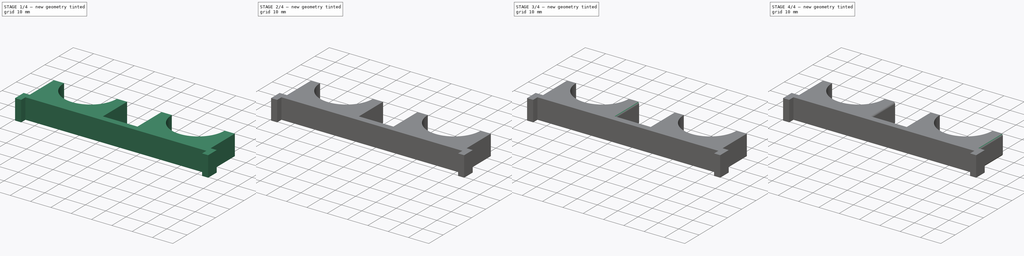
[diagram: build sequence overview — one tinted view per stage of 4, left to right]
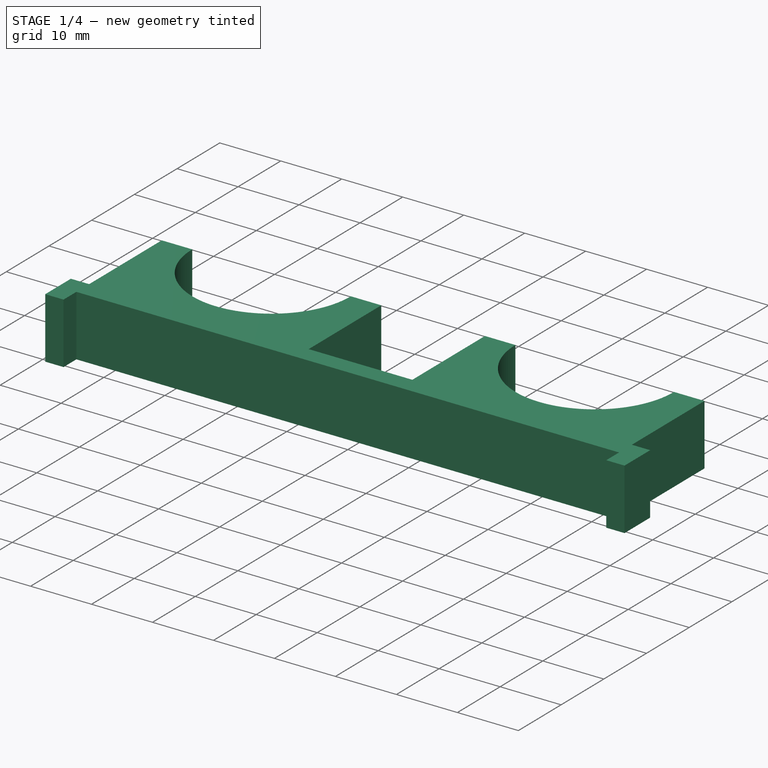
[diagram: stage 1 of 4 — iso view after this stage's code; geometry added in this stage tinted green]
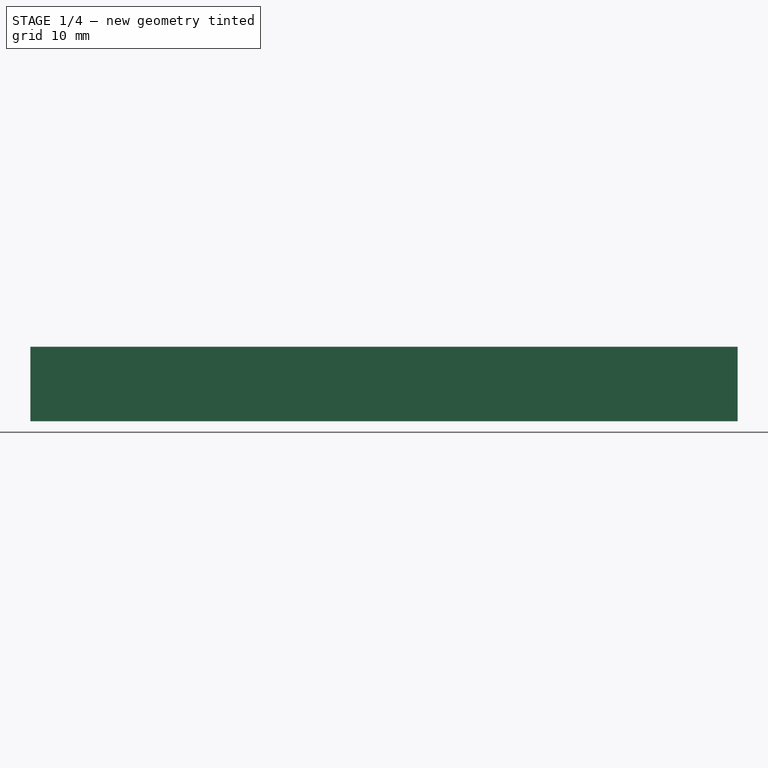
[diagram: stage 1 of 4 — front view after this stage's code; geometry added in this stage tinted green]
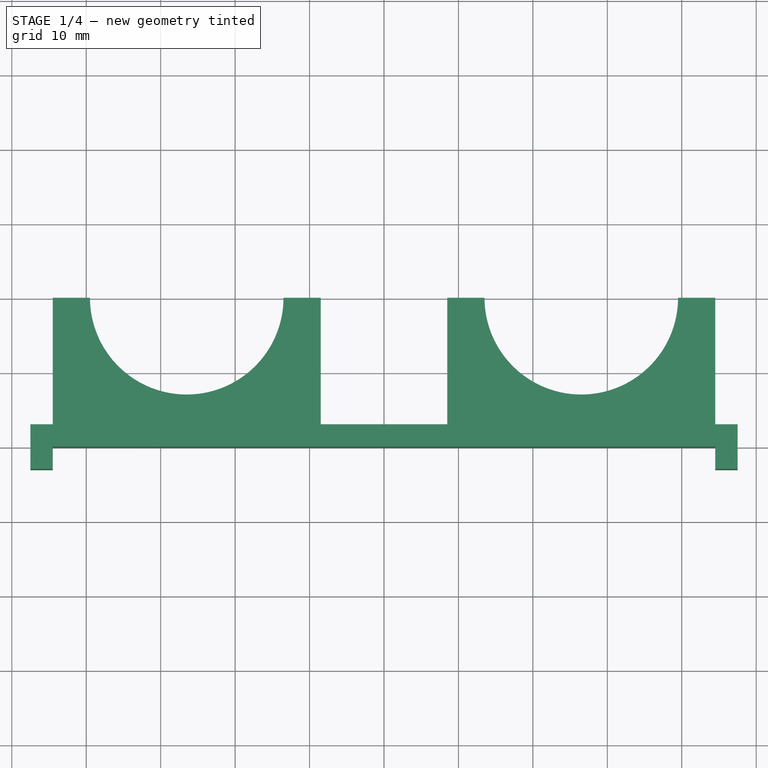
[diagram: stage 1 of 4 — top view after this stage's code; geometry added in this stage tinted green]
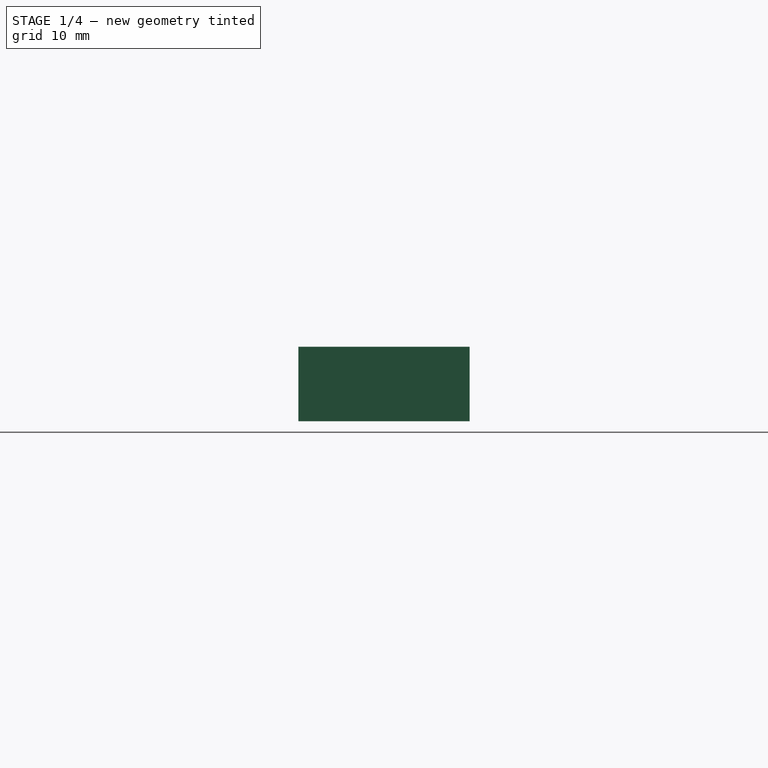
[diagram: stage 1 of 4 — right view after this stage's code; geometry added in this stage tinted green]
FCSTD DOCUMENT  (FreeCAD 0.19R22960 (Git))
Label: pump_plate
License: All rights reserved
LicenseURL: http://en.wikipedia.org/wiki/All_rights_reserved
objects: PartDesign::Fillet×8, PartDesign::CoordinateSystem×5, App::Link×4, App::DocumentObjectGroup×2, Sketcher::SketchObject×2, App::FeaturePython×1, PartDesign::Pad×1, PartDesign::Pocket×1, PartDesign::Body×1, App::Part×1
note: 28 computed .brp shape members not serialized (recipe doc carries the construction recipe); baked Part::Feature solids carry a one-line shape summary decoded from their .brp
EXTERNAL_REF file=12V_Pump.FCStd obj=LCS_Origin
EXTERNAL_REF file=12V_Pump.FCStd obj=Model
EXTERNAL_REF file=pump_clamp.FCStd obj=MH
EXTERNAL_REF file=pump_clamp.FCStd obj=Model

FEATURE [App::DocumentObjectGroup] Parts
FEATURE [PartDesign::CoordinateSystem] LCS_Origin
  AttacherType = Attacher::AttachEngine3D
  MapMode = 2
  Support = -> [X_Axis]
FEATURE [App::DocumentObjectGroup] Constraints
FEATURE [App::FeaturePython] Variables  # WARN: FeaturePython — macro-defined, semantics opaque (R4)
FEATURE [App::Link] _2V_Pump
  AssemblyType = Asm4EE
  AttachedBy = #LCS_Origin
  AttachedTo = Parent Assembly#Pump1_Mount
  AttachmentOffset = pos=(0,0,0) rot=(1,0,0;3.14159rad)
  LinkPlacement = pos=(-26.5,20,0) rot=(0.707107,-0.707107,0;3.14159rad)
  LinkedObject = -> <external 12V_Pump.FCStd>#Model
  Placement = pos=(-26.5,20,0) rot=(0.707107,-0.707107,0;3.14159rad)
  expr: Placement = Pump1_Mount.Placement * AttachmentOffset * _2V_Pump#LCS_Origin.Placement ^ -1
FEATURE [App::Link] _2V_Pump001
  AssemblyType = Asm4EE
  AttachedBy = #LCS_Origin
  AttachedTo = Parent Assembly#Pump2_Mount
  AttachmentOffset = pos=(0,0,0) rot=(1,0,0;3.14159rad)
  LinkPlacement = pos=(26.5,20,0) rot=(0.707107,-0.707107,0;3.14159rad)
  LinkedObject = -> <external 12V_Pump.FCStd>#Model
  Placement = pos=(26.5,20,0) rot=(0.707107,-0.707107,0;3.14159rad)
  expr: Placement = Pump2_Mount.Placement * AttachmentOffset * _2V_Pump#LCS_Origin.Placement ^ -1
FEATURE [Sketcher::SketchObject] Sketch001
  MapMode = 5
  Support = -> [XY_Plane001]
  sketch-geometry (22):
    g0: LineSegment StartX=-8.5 StartY=3 StartZ=0 EndX=-8.5 EndY=20 EndZ=0
    g1: LineSegment StartX=-44.5 StartY=20 StartZ=0 EndX=-39.5 EndY=20 EndZ=0
    g2: LineSegment StartX=-8.5 StartY=20 StartZ=0 EndX=-13.5 EndY=20 EndZ=0
    g3: ArcOfCircle CenterX=-26.5 CenterY=20 CenterZ=0 NormalX=0 NormalY=0 NormalZ=1 AngleXU=0 Radius=13 StartAngle=3.14159 EndAngle=6.28319
    g4: LineSegment StartX=8.5 StartY=3 StartZ=0 EndX=8.5 EndY=20 EndZ=0
    g5: LineSegment StartX=8.5 StartY=20 StartZ=0 EndX=13.5 EndY=20 EndZ=0
    g6: LineSegment StartX=44.5 StartY=20 StartZ=0 EndX=39.5 EndY=20 EndZ=0
    g7: ArcOfCircle CenterX=26.5 CenterY=20 CenterZ=0 NormalX=0 NormalY=0 NormalZ=1 AngleXU=0 Radius=13 StartAngle=3.14159 EndAngle=6.28319
    g8: LineSegment StartX=-8.5 StartY=3 StartZ=0 EndX=8.5 EndY=3 EndZ=0
    g9: LineSegment StartX=-43.5 StartY=0 StartZ=0 EndX=43.5 EndY=0 EndZ=0
    g10: LineSegment StartX=-44.5 StartY=3 StartZ=0 EndX=-47.5 EndY=3 EndZ=0
    g11: LineSegment StartX=-47.5 StartY=3 StartZ=0 EndX=-47.5 EndY=-3 EndZ=0
    g12: LineSegment StartX=-47.5 StartY=-3 StartZ=0 EndX=-44.5 EndY=-3 EndZ=0
    g13: LineSegment StartX=-44.5 StartY=-3 StartZ=0 EndX=-44.5 EndY=0 EndZ=0
    g14: LineSegment StartX=-44.5 StartY=3 StartZ=0 EndX=-44.5 EndY=20 EndZ=0
    g15: LineSegment StartX=43.5 StartY=0 StartZ=0 EndX=44.5 EndY=0 EndZ=0
    g16: LineSegment StartX=44.5 StartY=0 StartZ=0 EndX=44.5 EndY=-3 EndZ=0
    g17: LineSegment StartX=44.5 StartY=-3 StartZ=0 EndX=47.5 EndY=-3 EndZ=0
    g18: LineSegment StartX=47.5 StartY=-3 StartZ=0 EndX=47.5 EndY=3 EndZ=0
    g19: LineSegment StartX=47.5 StartY=3 StartZ=0 EndX=44.5 EndY=3 EndZ=0
    g20: LineSegment StartX=44.5 StartY=3 StartZ=0 EndX=44.5 EndY=20 EndZ=0
    g21: LineSegment StartX=-44.5 StartY=0 StartZ=0 EndX=-43.5 EndY=0 EndZ=0
  constraints (68):
    c: Vertical(g0)
    c: DistanceX(g9,g0) = 35
    c: DistanceY(g9,g1) = 20
    c: Horizontal(g1)
    c: Coincident(g2,g0)
    c: Horizontal(g2)
    c: Equal(g2,g1)
    c: DistanceX(g2,g2) = 5
    c: Coincident(g3,g1)
    c: Coincident(g3,g2)
    c: Horizontal(g3,g1)
    c: Vertical(g4)
    c: DistanceX(g4,g9) = 35
    c: Coincident(g5,g4)
    c: Horizontal(g5)
    c: Horizontal(g6)
    c: Equal(g6,g5)
    c: Equal(g2,g6) = 5
    c: Coincident(g7,g5)
    c: Coincident(g7,g6)
    c: Horizontal(g7,g5)
    c: Coincident(g8,g0)
    c: Coincident(g8,g4)
    c: DistanceY(g-1,g4) = 3
    c: Horizontal(g2,g1)
    c: Horizontal(g9,g-1)
    c: Horizontal(g9,g9)
    c: Symmetric(g0,g4,g-2)
    c: Equal(g4,g0)
    c: DistanceX(g8,g8) = 17
    c: Horizontal(g10)
    c: Coincident(g11,g10)
    c: Vertical(g11)
    c: Coincident(g12,g11)
    c: Horizontal(g12)
    c: Coincident(g13,g12)
    c: PointOnObject(g13,g-1)
    c: Vertical(g13)
    c: Coincident(g14,g10)
    c: Coincident(g14,g1)
    c: Vertical(g14)
    c: Coincident(g15,g9)
    c: PointOnObject(g15,g-1)
    c: Coincident(g16,g15)
    c: Vertical(g16)
    c: Coincident(g17,g16)
    c: Horizontal(g17)
    c: Coincident(g18,g17)
    c: Vertical(g18)
    c: Coincident(g19,g18)
    c: Horizontal(g19)
    c: Coincident(g20,g19)
    c: Coincident(g20,g6)
    c: Vertical(g20)
    c: Equal(g12,g17)
    c: Equal(g11,g18)
    c: Coincident(g21,g13)
    c: Coincident(g21,g9)
    c: Equal(g21,g15)
    c: DistanceX(g21,g21) = 1
    c: DistanceX(g12,g12) = 3
    c: DistanceY(g11,g11) = 6
    c: Equal(g20,g14)
    c: Horizontal(g5,g6)
    c: DistanceY(g14,g14) = 17
    c: Equal(g1,g2)
    c: Diameter(g3) = 26
    c: Equal(g7,g3)
FEATURE [PartDesign::Pad] Pad
  Direction = (1,1,1)
  Length = 10
  Length2 = 100
  Profile = -> Sketch001
  Type = 0
FEATURE [PartDesign::CoordinateSystem] Pump1_Mount
  AttacherType = Attacher::AttachEngine3D
  MapMode = 11
  Placement = pos=(-26.5,20,0) rot=(0,0,-1;1.5708rad)
  Support = -> [Pad]
FEATURE [PartDesign::CoordinateSystem] Pump2_Mount
  AttacherType = Attacher::AttachEngine3D
  MapMode = 11
  Placement = pos=(26.5,20,0) rot=(0,0,-1;1.5708rad)
  Support = -> [Pad]
FEATURE [Sketcher::SketchObject] Sketch
  ExternalGeometry = -> [Pad]
  MapMode = 5
  Placement = pos=(0,20,0) rot=(0,0.707107,0.707107;3.14159rad)
  Support = -> [Pad]
  sketch-geometry (21):
    g0: Circle CenterX=-11 CenterY=5 CenterZ=0 NormalX=0 NormalY=0 NormalZ=1 AngleXU=0 Radius=1
    g1: Circle CenterX=11 CenterY=5 CenterZ=0 NormalX=0 NormalY=0 NormalZ=1 AngleXU=0 Radius=1
    g2: Circle CenterX=42 CenterY=5 CenterZ=0 NormalX=0 NormalY=0 NormalZ=1 AngleXU=0 Radius=1
    g3: Circle CenterX=-42 CenterY=5 CenterZ=0 NormalX=0 NormalY=0 NormalZ=1 AngleXU=0 Radius=1
    g4: LineSegment [constr] StartX=-42 StartY=5 StartZ=0 EndX=-39.5 EndY=5 EndZ=0
    g5: LineSegment [constr] StartX=-42 StartY=5 StartZ=0 EndX=-42 EndY=5 EndZ=0
    g6: LineSegment [constr] StartX=-44.5 StartY=5 StartZ=0 EndX=-42 EndY=5 EndZ=0
    g7: LineSegment [constr] StartX=-11 StartY=5 StartZ=0 EndX=-13.5 EndY=5 EndZ=0
    g8: LineSegment [constr] StartX=-11 StartY=5 StartZ=0 EndX=-8.5 EndY=5 EndZ=0
    g9: LineSegment [constr] StartX=11 StartY=5 StartZ=0 EndX=8.5 EndY=5 EndZ=0
    g10: LineSegment [constr] StartX=11 StartY=5 StartZ=0 EndX=13.5 EndY=5 EndZ=0
    g11: LineSegment [constr] StartX=42 StartY=5 StartZ=0 EndX=39.5 EndY=5 EndZ=0
    g12: LineSegment [constr] StartX=42 StartY=5 StartZ=0 EndX=44.5 EndY=5 EndZ=0
    g13: LineSegment [constr] StartX=11 StartY=5 StartZ=0 EndX=11 EndY=10 EndZ=0
    g14: LineSegment [constr] StartX=11 StartY=5 StartZ=0 EndX=11 EndY=0 EndZ=0
    g15: LineSegment [constr] StartX=42 StartY=5 StartZ=0 EndX=42 EndY=0 EndZ=0
    g16: LineSegment [constr] StartX=42 StartY=5 StartZ=0 EndX=42 EndY=10 EndZ=0
    g17: LineSegment [constr] StartX=-11 StartY=5 StartZ=0 EndX=-11 EndY=10 EndZ=0
    g18: LineSegment [constr] StartX=-11 StartY=5 StartZ=0 EndX=-11 EndY=0 EndZ=0
    g19: LineSegment [constr] StartX=-42 StartY=5 StartZ=0 EndX=-42 EndY=0 EndZ=0
    g20: LineSegment [constr] StartX=-42 StartY=5 StartZ=0 EndX=-42 EndY=10 EndZ=0
  constraints (63):
    c: Coincident(g4,g3)
    c: PointOnObject(g4,g-5)
    c: Horizontal(g4)
    c: PointOnObject(g5,g4)
    c: Coincident(g5,g3)
    c: Vertical(g5)
    c: PointOnObject(g6,g-6)
    c: Coincident(g6,g3)
    c: Horizontal(g6)
    c: Coincident(g7,g0)
    c: PointOnObject(g7,g-4)
    c: Horizontal(g7)
    c: Coincident(g8,g0)
    c: Horizontal(g8)
    c: Coincident(g9,g1)
    c: PointOnObject(g9,g-7)
    c: Horizontal(g9)
    c: Coincident(g10,g1)
    c: Horizontal(g10)
    c: Coincident(g11,g2)
    c: PointOnObject(g11,g-9)
    c: Coincident(g12,g2)
    c: Horizontal(g12)
    c: Horizontal(g11)
    c: Coincident(g13,g1)
    c: Vertical(g13)
    c: Coincident(g14,g1)
    c: PointOnObject(g14,g-14)
    c: Vertical(g14)
    c: Coincident(g15,g2)
    c: PointOnObject(g15,g-12)
    c: Vertical(g15)
    c: Coincident(g16,g2)
    c: Vertical(g16)
    c: Coincident(g17,g0)
    c: PointOnObject(g17,g-15)
    c: Vertical(g17)
    c: Coincident(g18,g0)
    c: Coincident(g19,g3)
    c: PointOnObject(g19,g-18)
    c: Coincident(g20,g3)
    c: Vertical(g20)
    c: Vertical(g19)
    c: Vertical(g18)
    c: Equal(g19,g20)
    c: Equal(g20,g17)
    c: Equal(g17,g18)
    c: Equal(g18,g14)
    c: Equal(g14,g13)
    c: Equal(g13,g16)
    c: Equal(g16,g15)
    c: Horizontal(g20,g-17)
    c: Equal(g4,g6)
    c: Equal(g6,g8)
    c: Equal(g8,g7)
    c: Equal(g7,g9)
    c: Equal(g9,g10)
    c: Equal(g10,g11)
    c: Equal(g11,g12)
    c: Equal(g3,g0)
    c: Equal(g0,g1)
    c: Equal(g1,g2)
    c: Diameter(g3) = 2
FEATURE [PartDesign::Pocket] Pocket
  BaseFeature = -> Pad
  Length = 15
  Length2 = 100
  Profile = -> Sketch
  Type = 0
FEATURE [PartDesign::CoordinateSystem] MH1
  AttacherType = Attacher::AttachEngine3D
  MapMode = 11
  Placement = pos=(42,20,5) rot=(0.57735,0.57735,0.57735;4.18879rad)
  Support = -> [Pocket]
FEATURE [PartDesign::CoordinateSystem] MH2
  AttacherType = Attacher::AttachEngine3D
  MapMode = 11
  Placement = pos=(-11,20,5) rot=(0.57735,0.57735,0.57735;4.18879rad)
  Support = -> [Pocket]
FEATURE [App::Link] pump_clamp
  AssemblyType = Asm4EE
  AttachedBy = #MH
  AttachedTo = Parent Assembly#MH1
  AttachmentOffset = pos=(0,0,0) rot=(-1,0,0;3.14159rad)
  LinkPlacement = pos=(8.5,36,8e-15) rot=(0,0,1;3.14159rad)
  LinkedObject = -> <external pump_clamp.FCStd>#Model
  Placement = pos=(8.5,36,8e-15) rot=(0,0,1;3.14159rad)
  expr: Placement = MH1.Placement * AttachmentOffset * pump_clamp#MH.Placement ^ -1
FEATURE [App::Link] pump_clamp001
  AssemblyType = Asm4EE
  AttachedBy = #MH
  AttachedTo = Parent Assembly#MH2
  AttachmentOffset = pos=(0,0,0) rot=(1,0,0;3.14159rad)
  LinkPlacement = pos=(-44.5,36,8e-15) rot=(0,0,-1;3.14159rad)
  LinkedObject = -> <external pump_clamp.FCStd>#Model
  Placement = pos=(-44.5,36,8e-15) rot=(0,0,-1;3.14159rad)
  expr: Placement = MH2.Placement * AttachmentOffset * pump_clamp#MH.Placement ^ -1
FEATURE [PartDesign::Fillet] Fillet
  Base = -> Pocket [Edge14]
  BaseFeature = -> Pocket
  Radius = 1
  SupportTransform = false
FEATURE [PartDesign::Fillet] Fillet001
  Base = -> Fillet [Edge74]
  BaseFeature = -> Fillet
  Radius = 1
  SupportTransform = false
FEATURE [PartDesign::Fillet] Fillet002
  Base = -> Fillet001 [Edge40]
  BaseFeature = -> Fillet001
  Radius = 1
  SupportTransform = false
FEATURE [PartDesign::Fillet] Fillet003
  Base = -> Fillet002 [Edge80]
  BaseFeature = -> Fillet002
  Radius = 1
  SupportTransform = false
FEATURE [PartDesign::Fillet] Fillet004
  Base = -> Fillet003 [Edge42]
  BaseFeature = -> Fillet003
  Radius = 1
  SupportTransform = false
FEATURE [PartDesign::Fillet] Fillet005
  Base = -> Fillet004 [Edge86]
  BaseFeature = -> Fillet004
  Radius = 1
  SupportTransform = false
FEATURE [PartDesign::Fillet] Fillet006
  Base = -> Fillet005 [Edge42]
  BaseFeature = -> Fillet005
  Radius = 1
  SupportTransform = false
FEATURE [PartDesign::Fillet] Fillet007
  Base = -> Fillet006 [Edge92]
  BaseFeature = -> Fillet006
  Radius = 1
  SupportTransform = false
FEATURE [PartDesign::Body] Body
  Group = -> [Sketch001,Pad,Sketch,Pocket,Fillet,Fillet001,Fillet002,Fillet003,Fillet004,Fillet005,Fillet006,Fillet007]
  Origin = -> Origin001
  Tip = -> Fillet007
FEATURE [App::Part] Model
  Configuration = 0
  Group = -> [LCS_Origin,Constraints,Variables,Body,Pump1_Mount,Pump2_Mount,_2V_Pump,_2V_Pump001,MH1,MH2,pump_clamp,pump_clamp001]
  Origin = -> Origin
  Type = Assembly4 Model

RESOLVED EXTERNAL PARTS (link-assembly join: the EXTERNAL_REF files above that resolve inside this repo's crawl, each included once):
---- part 12V_Pump.FCStd = doc fcstd_ab92d86b8141 ----
FCSTD DOCUMENT  (FreeCAD 0.19R22960 (Git))
Label: 12V_Pump
License: All rights reserved
LicenseURL: http://en.wikipedia.org/wiki/All_rights_reserved
objects: Sketcher::SketchObject×3, PartDesign::Pad×3, App::DocumentObjectGroup×2, PartDesign::Fillet×2, PartDesign::CoordinateSystem×1, App::FeaturePython×1, PartDesign::Body×1, App::Part×1
note: 15 computed .brp shape members not serialized (recipe doc carries the construction recipe); baked Part::Feature solids carry a one-line shape summary decoded from their .brp

FEATURE [App::DocumentObjectGroup] Parts
FEATURE [PartDesign::CoordinateSystem] LCS_Origin
  AttacherType = Attacher::AttachEngine3D
  MapMode = 2
  Support = -> [X_Axis]
FEATURE [App::DocumentObjectGroup] Constraints
FEATURE [App::FeaturePython] Variables  # WARN: FeaturePython — macro-defined, semantics opaque (R4)
FEATURE [Sketcher::SketchObject] Sketch
  MapMode = 5
  Support = -> [XY_Plane001]
  sketch-geometry (1):
    g0: Circle CenterX=0 CenterY=0 CenterZ=0 NormalX=0 NormalY=0 NormalZ=1 AngleXU=0 Radius=13.5
  constraints (2):
    c: Coincident(g0,g-1)
    c: Diameter(g0) = 27
FEATURE [PartDesign::Pad] Pad
  Direction = (1,1,1)
  Length = 30
  Length2 = 100
  Profile = -> Sketch
  Type = 0
FEATURE [Sketcher::SketchObject] Sketch001
  MapMode = 5
  Placement = pos=(0,0,0) rot=(1,0,0;3.14159rad)
  Support = -> [Pad]
  sketch-geometry (1):
    g0: Circle CenterX=0 CenterY=0 CenterZ=0 NormalX=0 NormalY=0 NormalZ=1 AngleXU=0 Radius=12
  constraints (2):
    c: Coincident(g0,g-1)
    c: Diameter(g0) = 24
FEATURE [PartDesign::Pad] Pad001
  BaseFeature = -> Pad
  Direction = (1,1,1)
  Length = 30
  Length2 = 100
  Profile = -> Sketch001
  Type = 0
FEATURE [Sketcher::SketchObject] Sketch002
  MapMode = 5
  Placement = pos=(0,0,30) rot=(0,0,1;0rad)
  Support = -> [Pad001]
  sketch-geometry (2):
    g0: Circle CenterX=0 CenterY=0 CenterZ=0 NormalX=0 NormalY=0 NormalZ=1 AngleXU=0 Radius=2.1
    g1: Circle CenterX=0 CenterY=-8.9 CenterZ=0 NormalX=0 NormalY=0 NormalZ=1 AngleXU=0 Radius=2.1
  constraints (5):
    c: Coincident(g0,g-1)
    c: Diameter(g0) = 4.2
    c: PointOnObject(g1,g-2)
    c: DistanceY(g1,g0) = 8.9
    c: Equal(g0,g1)
FEATURE [PartDesign::Pad] Pad002
  BaseFeature = -> Pad001
  Direction = (1,1,1)
  Length = 6.75
  Length2 = 100
  Profile = -> Sketch002
  Type = 0
FEATURE [PartDesign::Fillet] Fillet
  Base = -> Pad002 [Edge12]
  BaseFeature = -> Pad002
  Radius = 0.5
  SupportTransform = false
FEATURE [PartDesign::Fillet] Fillet001
  Base = -> Fillet [Edge11]
  BaseFeature = -> Fillet
  Radius = 0.5
  SupportTransform = false
FEATURE [PartDesign::Body] Body
  Group = -> [Sketch,Pad,Sketch001,Pad001,Sketch002,Pad002,Fillet,Fillet001]
  Origin = -> Origin001
  Tip = -> Fillet001
FEATURE [App::Part] Model
  Configuration = 0
  Group = -> [LCS_Origin,Constraints,Variables,Body]
  Origin = -> Origin
  Type = Assembly4 Model
---- part pump_clamp.FCStd = doc fcstd_ec60285a9ac4 ----
FCSTD DOCUMENT  (FreeCAD 0.19R22960 (Git))
Label: pump_clamp
License: All rights reserved
LicenseURL: http://en.wikipedia.org/wiki/All_rights_reserved
objects: PartDesign::Fillet×8, App::DocumentObjectGroup×2, PartDesign::CoordinateSystem×2, Sketcher::SketchObject×2, App::FeaturePython×1, PartDesign::Pad×1, PartDesign::Pocket×1, PartDesign::Body×1, App::Part×1
note: 25 computed .brp shape members not serialized (recipe doc carries the construction recipe); baked Part::Feature solids carry a one-line shape summary decoded from their .brp

FEATURE [App::DocumentObjectGroup] Parts
FEATURE [PartDesign::CoordinateSystem] LCS_Origin
  AttacherType = Attacher::AttachEngine3D
  MapMode = 2
  Support = -> [X_Axis]
FEATURE [App::DocumentObjectGroup] Constraints
FEATURE [App::FeaturePython] Variables  # WARN: FeaturePython — macro-defined, semantics opaque (R4)
FEATURE [Sketcher::SketchObject] Sketch001
  MapMode = 5
  sketch-geometry (10):
    g0: LineSegment StartX=-36 StartY=16 StartZ=0 EndX=-31 EndY=16 EndZ=0
    g1: LineSegment StartX=0 StartY=16 StartZ=0 EndX=-5 EndY=16 EndZ=0
    g2: ArcOfCircle CenterX=-18 CenterY=16 CenterZ=0 NormalX=0 NormalY=0 NormalZ=1 AngleXU=0 Radius=13 StartAngle=3.14159 EndAngle=6.28319
    g3: LineSegment StartX=-36 StartY=6 StartZ=0 EndX=-36 EndY=16 EndZ=0
    g4: LineSegment StartX=-36 StartY=6 StartZ=0 EndX=-30 EndY=6 EndZ=0
    g5: LineSegment StartX=-30 StartY=6 StartZ=0 EndX=-30 EndY=0 EndZ=0
    g6: LineSegment StartX=-6 StartY=0 StartZ=0 EndX=-6 EndY=6 EndZ=0
    g7: LineSegment StartX=-6 StartY=6 StartZ=0 EndX=0 EndY=6 EndZ=0
    g8: LineSegment StartX=0 StartY=6 StartZ=0 EndX=0 EndY=16 EndZ=0
    g9: LineSegment StartX=-30 StartY=0 StartZ=0 EndX=-6 EndY=0 EndZ=0
  constraints (32):
    c: Horizontal(g0)
    c: Horizontal(g1)
    c: Equal(g1,g0)
    c: DistanceX(g1,g1) = 5
    c: Coincident(g2,g0)
    c: Coincident(g2,g1)
    c: Horizontal(g2,g0)
    c: Horizontal(g1,g0)
    c: Coincident(g3,g0)
    c: Vertical(g3)
    c: Equal(g0,g1)
    c: Diameter(g2) = 26
    c: DistanceY(g3,g3) = 10
    c: Horizontal(g4)
    c: Coincident(g5,g4)
    c: Vertical(g5)
    c: Vertical(g6)
    c: Coincident(g7,g6)
    c: Horizontal(g7)
    c: Coincident(g8,g7)
    c: Coincident(g8,g1)
    c: Vertical(g8)
    c: Coincident(g9,g5)
    c: Coincident(g9,g6)
    c: Horizontal(g9)
    c: Equal(g6,g7)
    c: Equal(g7,g5)
    c: Equal(g5,g4)
    c: Horizontal(g6,g-1)
    c: Vertical(g7,g-1)
    c: Coincident(g3,g4)
    c: DistanceY(g5,g5) = 6
FEATURE [PartDesign::Pad] Pad
  Direction = (1,1,1)
  Length = 10
  Length2 = 100
  Profile = -> Sketch001
  Type = 0
FEATURE [Sketcher::SketchObject] Sketch
  ExternalGeometry = -> [Pad,Sketch001]
  MapMode = 5
  Placement = pos=(0,16,0) rot=(0,0.707107,0.707107;3.14159rad)
  Support = -> [Pad]
  sketch-geometry (10):
    g0: Circle CenterX=2.5 CenterY=5 CenterZ=0 NormalX=0 NormalY=0 NormalZ=1 AngleXU=0 Radius=1.25
    g1: Circle CenterX=33.5 CenterY=5 CenterZ=0 NormalX=0 NormalY=0 NormalZ=1 AngleXU=0 Radius=1.25
    g2: LineSegment [constr] StartX=2.5 StartY=5 StartZ=0 EndX=5 EndY=5 EndZ=0
    g3: LineSegment [constr] StartX=2.5 StartY=5 StartZ=0 EndX=0 EndY=5 EndZ=0
    g4: LineSegment [constr] StartX=2.5 StartY=5 StartZ=0 EndX=2.5 EndY=10 EndZ=0
    g5: LineSegment [constr] StartX=2.5 StartY=5 StartZ=0 EndX=2.5 EndY=0 EndZ=0
    g6: LineSegment [constr] StartX=33.5 StartY=5 StartZ=0 EndX=33.5 EndY=10 EndZ=0
    g7: LineSegment [constr] StartX=33.5 StartY=5 StartZ=0 EndX=36 EndY=5 EndZ=0
    g8: LineSegment [constr] StartX=33.5 StartY=5 StartZ=0 EndX=33.5 EndY=0 EndZ=0
    g9: LineSegment [constr] StartX=33.5 StartY=5 StartZ=0 EndX=31 EndY=5 EndZ=0
  constraints (30):
    c: Coincident(g2,g0)
    c: PointOnObject(g2,g-7)
    c: Horizontal(g2)
    c: Coincident(g3,g0)
    c: PointOnObject(g3,g-9)
    c: Horizontal(g3)
    c: Coincident(g4,g0)
    c: PointOnObject(g4,g-8)
    c: Vertical(g4)
    c: Coincident(g5,g0)
    c: PointOnObject(g5,g-10)
    c: Vertical(g5)
    c: Coincident(g6,g1)
    c: PointOnObject(g6,g-4)
    c: Vertical(g6)
    c: Coincident(g7,g1)
    c: PointOnObject(g7,g-5)
    c: Horizontal(g7)
    c: Coincident(g8,g1)
    c: Coincident(g9,g1)
    c: Horizontal(g9)
    c: Vertical(g8)
    c: Equal(g2,g3)
    c: Equal(g3,g9)
    c: Equal(g9,g7)
    c: Equal(g4,g5)
    c: Equal(g5,g8)
    c: Equal(g8,g6)
    c: Equal(g0,g1)
    c: Diameter(g0) = 2.5
FEATURE [PartDesign::Pocket] Pocket
  BaseFeature = -> Pad
  Length = 5
  Length2 = 100
  Profile = -> Sketch
  Type = 1
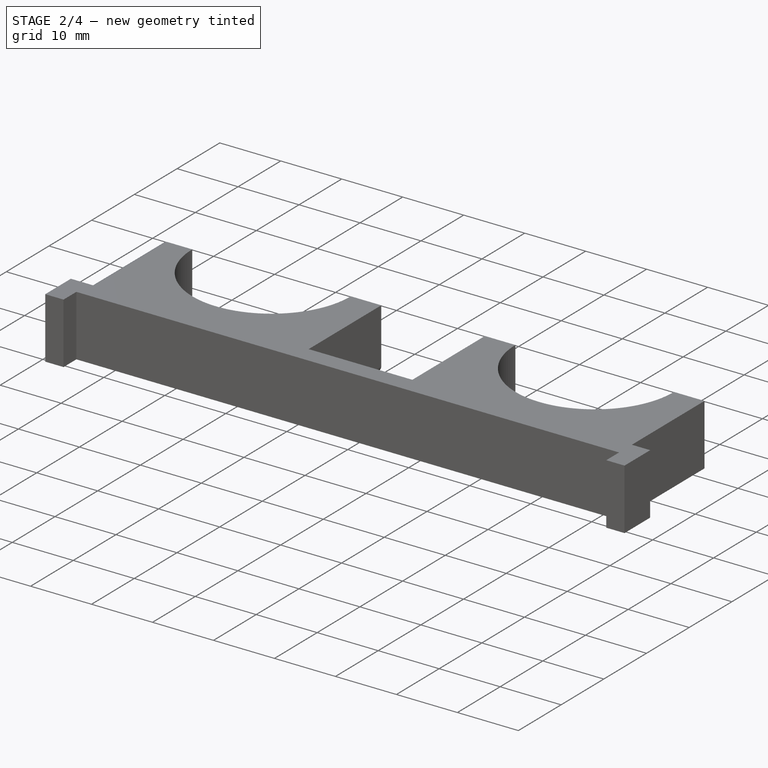
[diagram: stage 2 of 4 — iso view after this stage's code; geometry added in this stage tinted green]
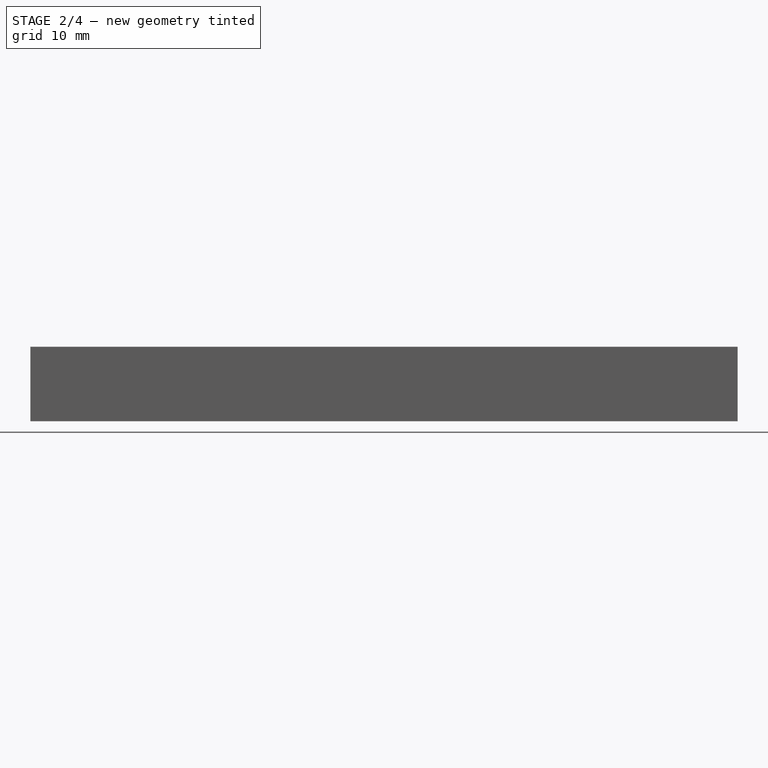
[diagram: stage 2 of 4 — front view after this stage's code; geometry added in this stage tinted green]
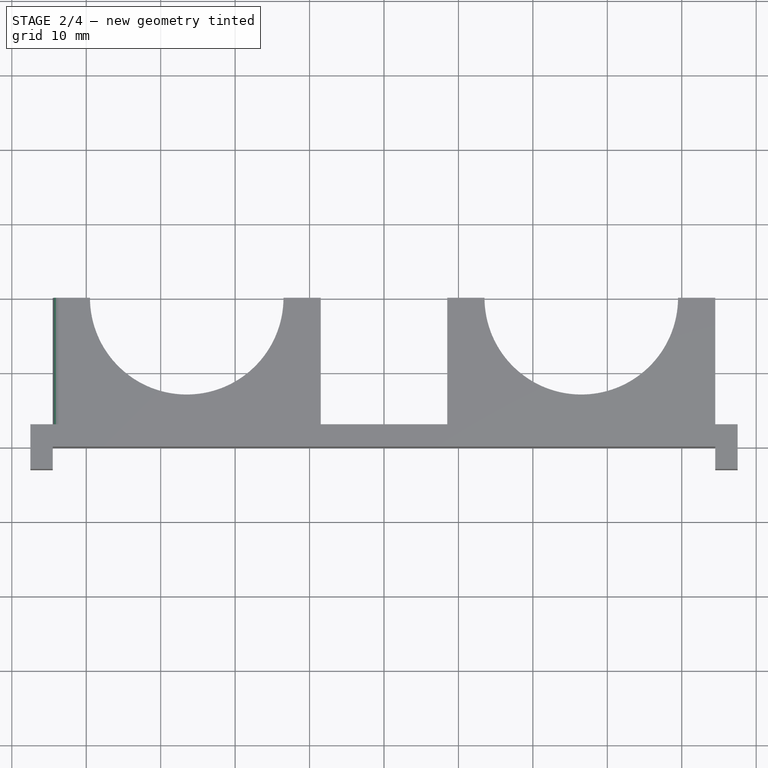
[diagram: stage 2 of 4 — top view after this stage's code; geometry added in this stage tinted green]
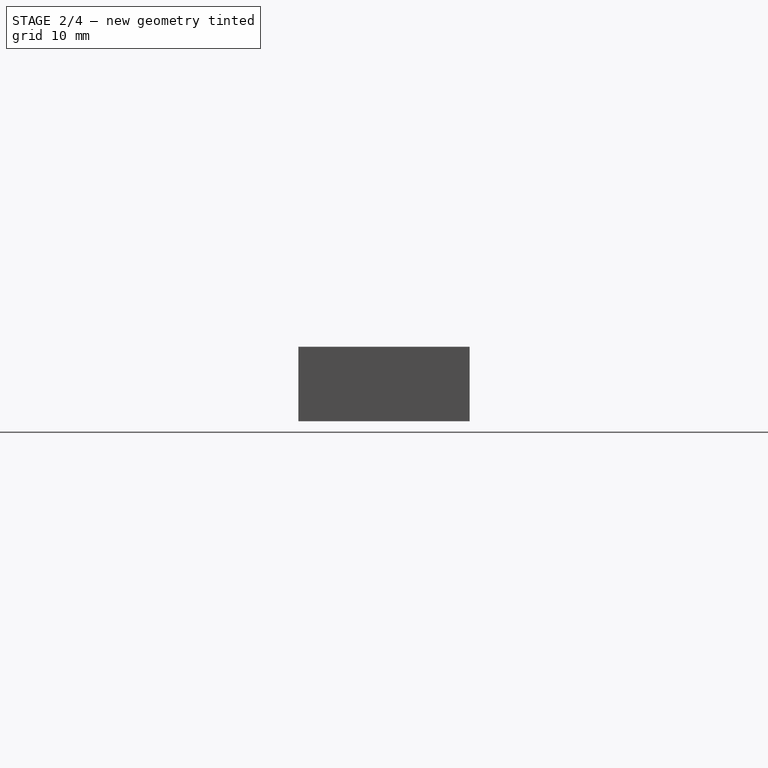
[diagram: stage 2 of 4 — right view after this stage's code; geometry added in this stage tinted green]
FEATURE [PartDesign::Fillet] Fillet
  Base = -> Pocket [Edge33]
  BaseFeature = -> Pocket
  Radius = 2.5
  SupportTransform = false
FEATURE [PartDesign::Fillet] Fillet001
  Base = -> Fillet [Edge21]
  BaseFeature = -> Fillet
  Radius = 2.5
  SupportTransform = false
FEATURE [PartDesign::Fillet] Fillet002
  Base = -> Fillet001 [Edge29]
  BaseFeature = -> Fillet001
  Radius = 2.5
  SupportTransform = false
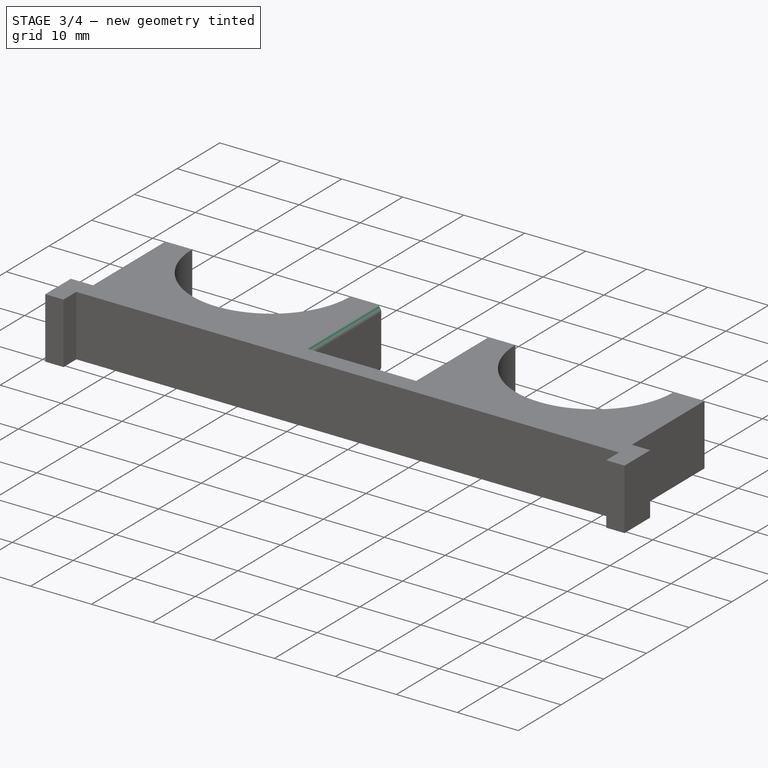
[diagram: stage 3 of 4 — iso view after this stage's code; geometry added in this stage tinted green]
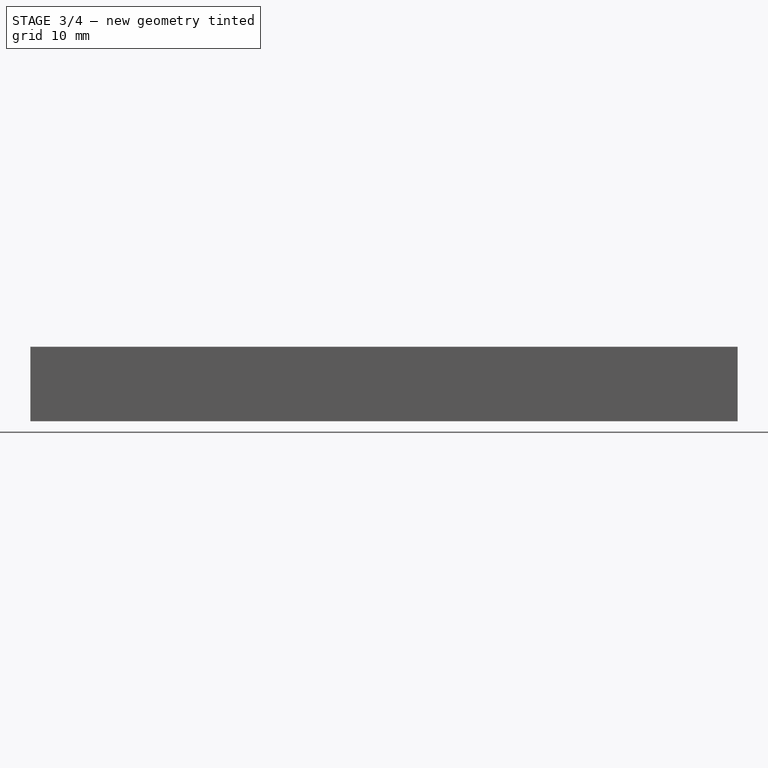
[diagram: stage 3 of 4 — front view after this stage's code; geometry added in this stage tinted green]
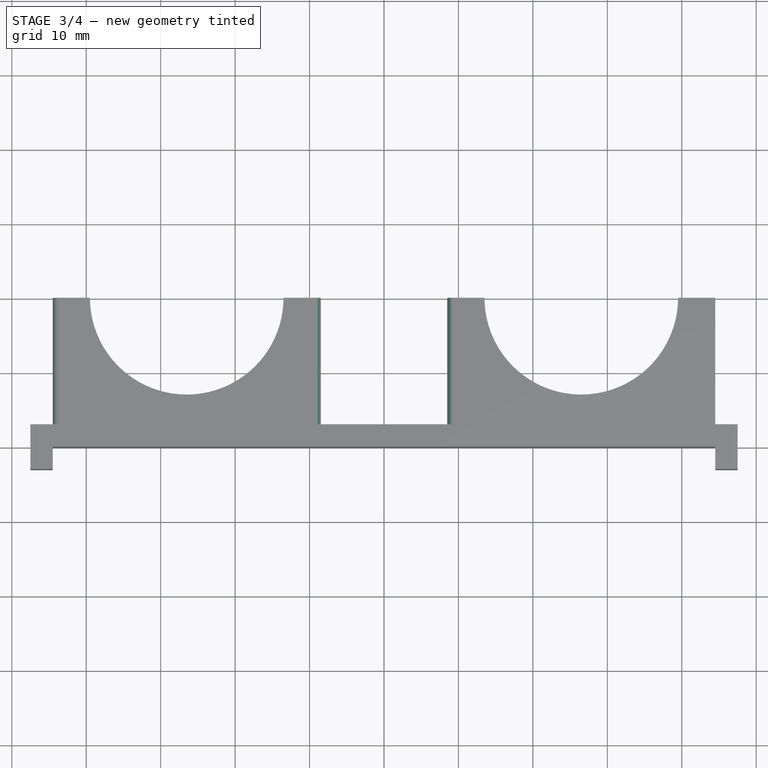
[diagram: stage 3 of 4 — top view after this stage's code; geometry added in this stage tinted green]
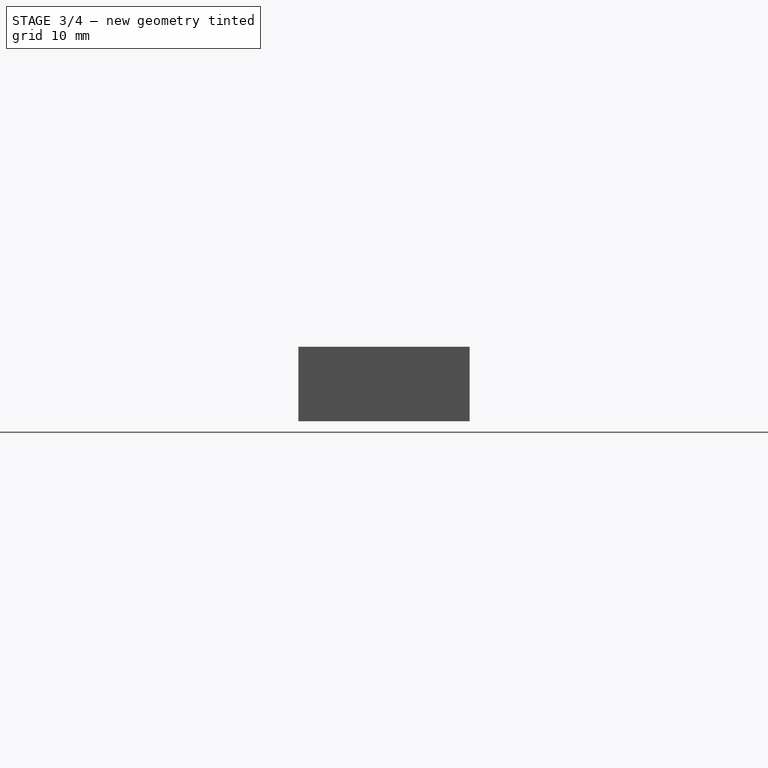
[diagram: stage 3 of 4 — right view after this stage's code; geometry added in this stage tinted green]
FEATURE [PartDesign::Fillet] Fillet003
  Base = -> Fillet002 [Edge15]
  BaseFeature = -> Fillet002
  Radius = 2.5
  SupportTransform = false
FEATURE [PartDesign::Fillet] Fillet004
  Base = -> Fillet003 [Edge26]
  BaseFeature = -> Fillet003
  Radius = 2
  SupportTransform = false
FEATURE [PartDesign::Fillet] Fillet005
  Base = -> Fillet004 [Edge46]
  BaseFeature = -> Fillet004
  Radius = 2
  SupportTransform = false
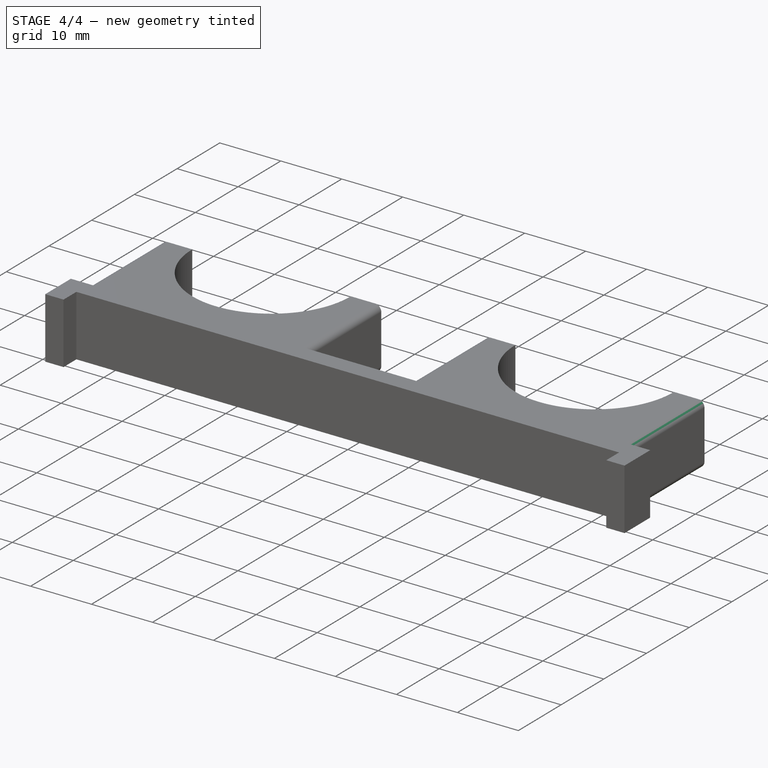
[diagram: stage 4 of 4 — iso view after this stage's code; geometry added in this stage tinted green]
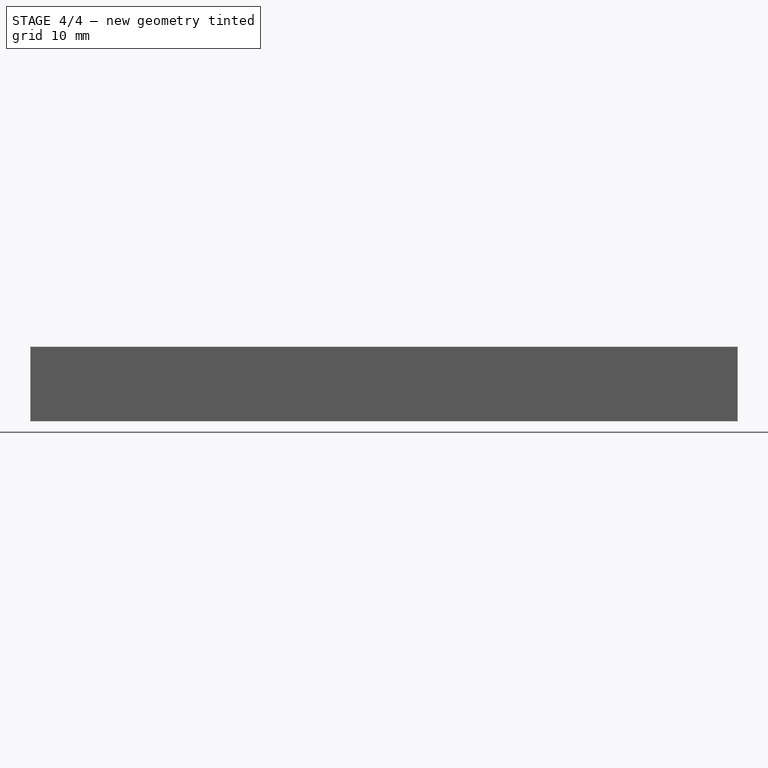
[diagram: stage 4 of 4 — front view after this stage's code; geometry added in this stage tinted green]
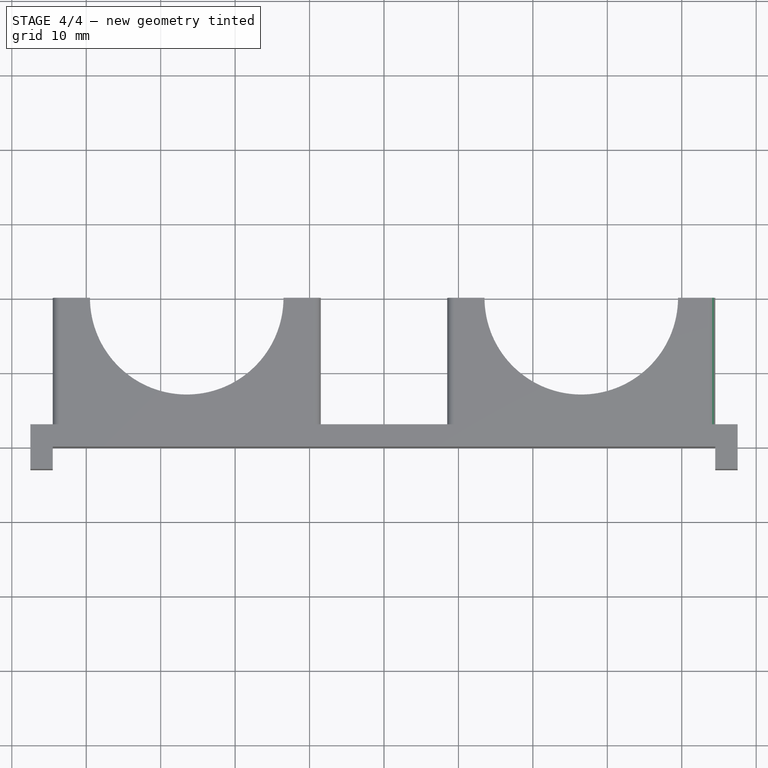
[diagram: stage 4 of 4 — top view after this stage's code; geometry added in this stage tinted green]
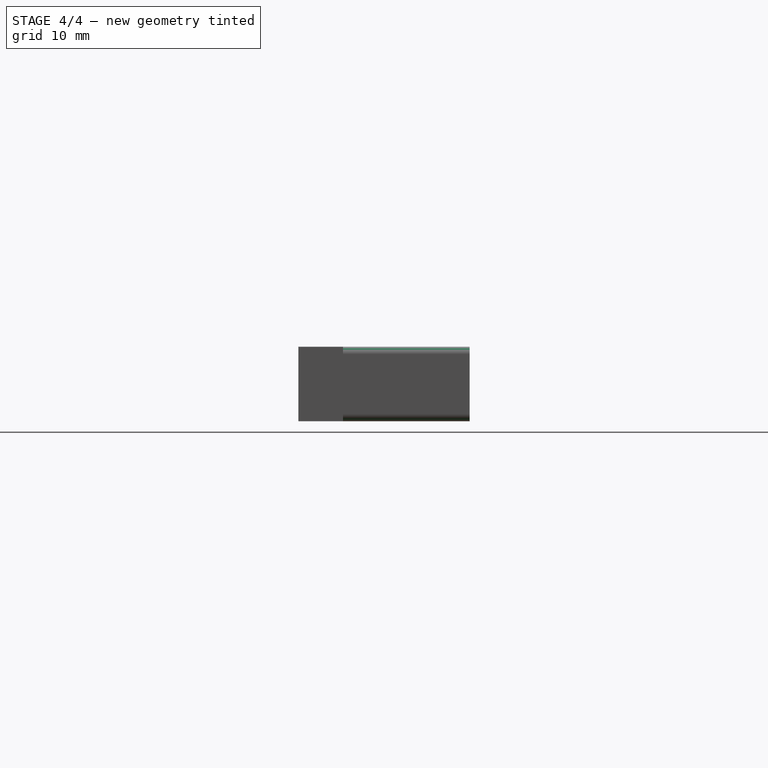
[diagram: stage 4 of 4 — right view after this stage's code; geometry added in this stage tinted green]
FEATURE [PartDesign::Fillet] Fillet006
  Base = -> Fillet005 [Edge66]
  BaseFeature = -> Fillet005
  Radius = 1
  SupportTransform = false
FEATURE [PartDesign::Fillet] Fillet007
  Base = -> Fillet006 [Edge26]
  BaseFeature = -> Fillet006
  Radius = 1
  SupportTransform = false
FEATURE [PartDesign::Body] Body
  Group = -> [Sketch001,Pad,Sketch,Pocket,Fillet,Fillet001,Fillet002,Fillet003,Fillet004,Fillet005,Fillet006,Fillet007]
  Origin = -> Origin001
  Tip = -> Fillet007
FEATURE [PartDesign::CoordinateSystem] MH
  AttacherType = Attacher::AttachEngine3D
  MapMode = 11
  Placement = pos=(-33.5,16,5) rot=(0.57735,0.57735,0.57735;4.18879rad)
  Support = -> [Fillet007]
FEATURE [App::Part] Model
  Configuration = 0
  Group = -> [LCS_Origin,Constraints,Variables,Body,MH]
  Origin = -> Origin
  Type = Assembly4 Model
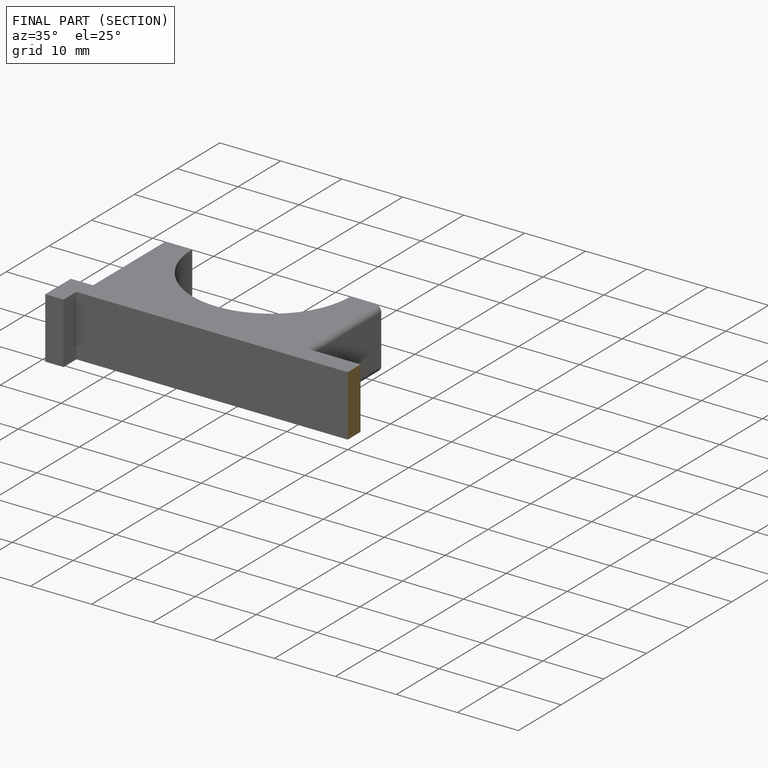
[diagram: finished part — half-section view (interior)]
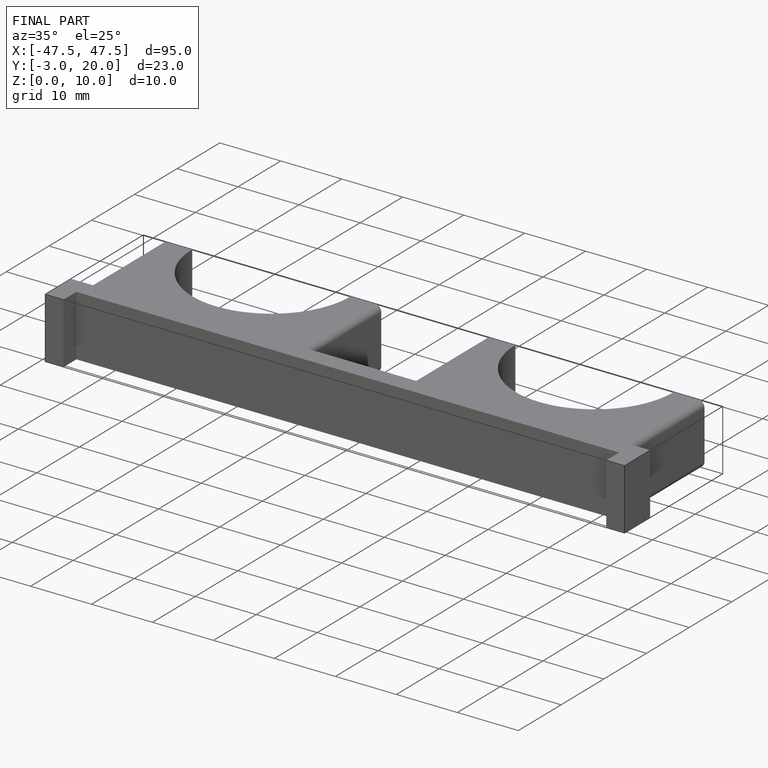
[diagram: finished part — iso view with bounding-box wireframe]
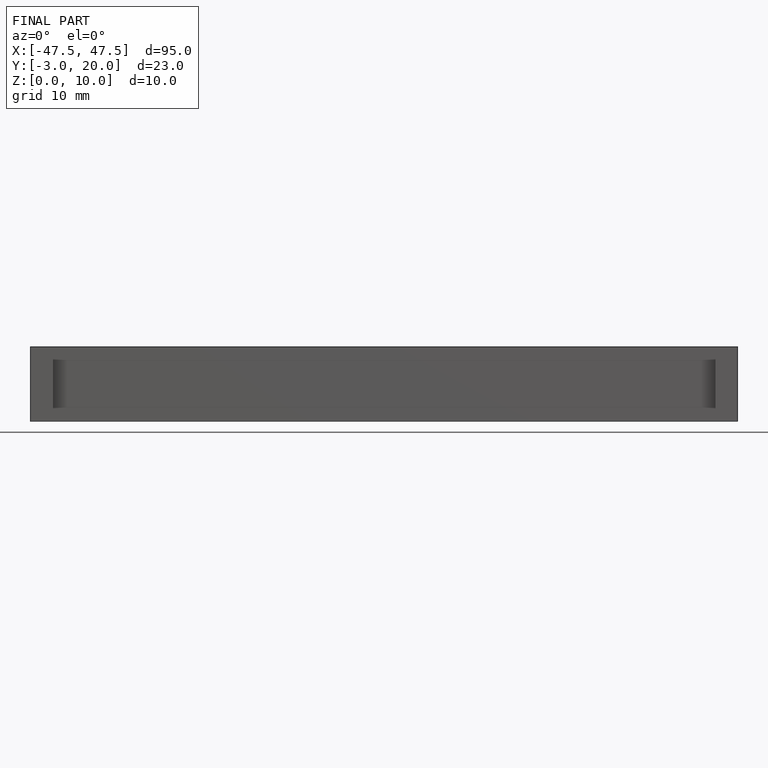
[diagram: finished part — front view with bounding-box wireframe]
